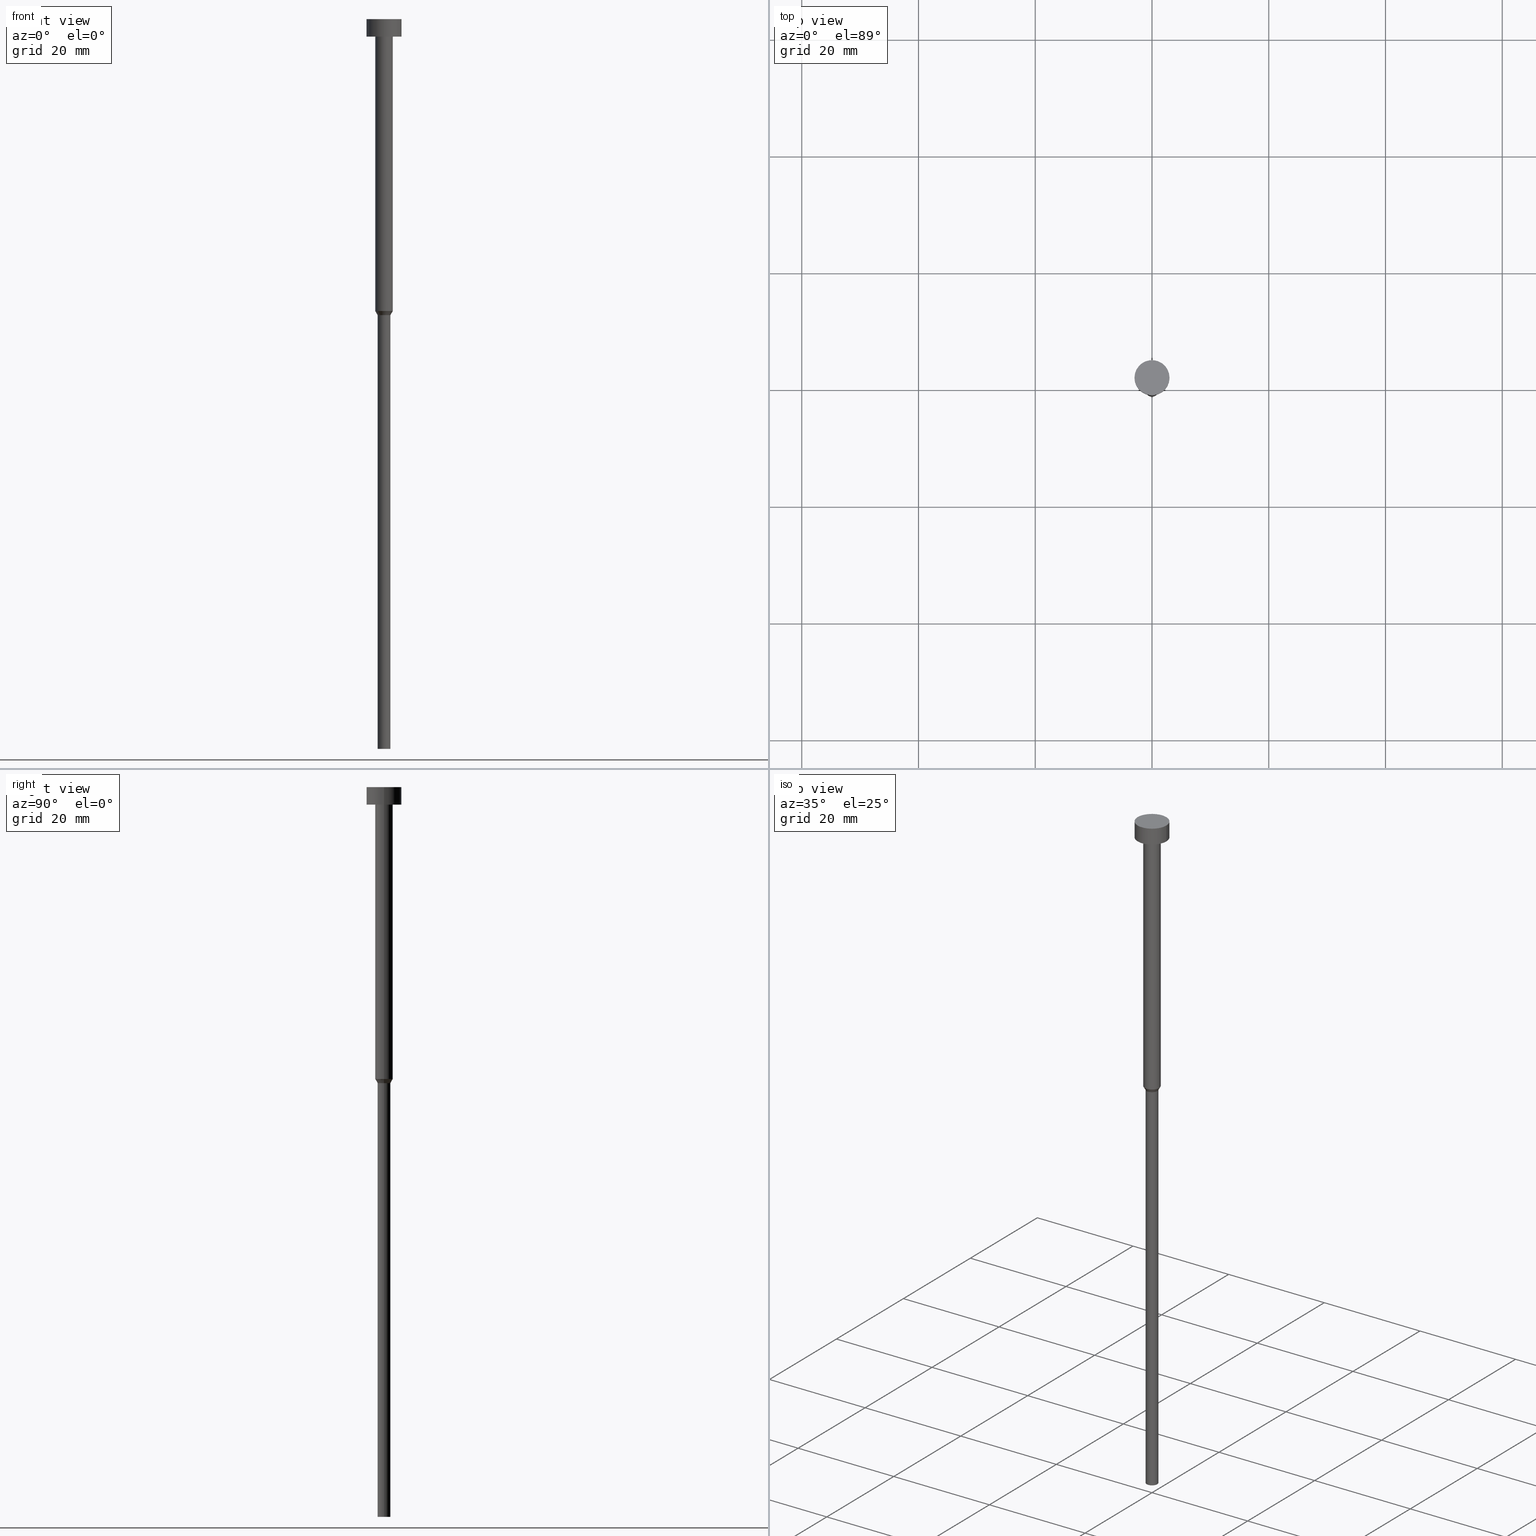
[diagram: canonical four-view strip — front | top / right | iso, engineering-drawing reading convention]
A machine part, canonical four-view strip (front | top / right | iso — engineering-drawing reading convention). The complete STEP part file that produces these views, byte-faithful:
ISO-10303-21;
HEADER;
FILE_DESCRIPTION (( 'STEP AP203' ),
    '1' );
FILE_NAME ('efb0.STEP',
    '2023-02-13T10:03:22',
    ( '' ),
    ( '' ),
    'SwSTEP 2.0',
    'SolidWorks 2019',
    '' );
FILE_SCHEMA (( 'CONFIG_CONTROL_DESIGN' ));
ENDSEC;

DATA;
#1 = CARTESIAN_POINT ( 'NONE',  ( 1.100000000000000089, 0.000000000000000000, -50.69282032302754715 ) ) ;
#2 = CIRCLE ( 'NONE', #160, 1.500000000000000000 ) ;
#3 = EDGE_CURVE ( 'NONE', #70, #236, #242, .T. ) ;
#4 = AXIS2_PLACEMENT_3D ( 'NONE', #271, #349, #139 ) ;
#5 = ORIENTED_EDGE ( 'NONE', *, *, #101, .F. ) ;
#6 = ORIENTED_EDGE ( 'NONE', *, *, #272, .T. ) ;
#7 = LOCAL_TIME ( 11, 3, 22.00000000000000000, #200 ) ;
#8 = LOCAL_TIME ( 11, 3, 22.00000000000000000, #168 ) ;
#9 = LINE ( 'NONE', #37, #30 ) ;
#10 = DIRECTION ( 'NONE',  ( -0.000000000000000000, -0.000000000000000000, 1.000000000000000000 ) ) ;
#11 = DIRECTION ( 'NONE',  ( -0.000000000000000000, -0.000000000000000000, 1.000000000000000000 ) ) ;
#12 = ORGANIZATION ( 'NEUR�EN�', 'NEUR�EN�', '' ) ;
#13 = COORDINATED_UNIVERSAL_TIME_OFFSET ( 1, 0, .AHEAD. ) ;
#14 = APPROVAL ( #237, 'NEUR�EN�' ) ;
#15 = DIRECTION ( 'NONE',  ( 1.000000000000000000, 0.000000000000000000, 0.000000000000000000 ) ) ;
#16 = CARTESIAN_POINT ( 'NONE',  ( 1.500000000000000000, 0.000000000000000000, -3.000000000000000888 ) ) ;
#17 = DIRECTION ( 'NONE',  ( 1.000000000000000000, 0.000000000000000000, 0.000000000000000000 ) ) ;
#18 = CONICAL_SURFACE ( 'NONE', #280, 1.500000000000000000, 0.5235987755983019243 ) ;
#19 = EDGE_CURVE ( 'NONE', #59, #92, #77, .T. ) ;
#20 = ORIENTED_EDGE ( 'NONE', *, *, #188, .F. ) ;
#21 = LOCAL_TIME ( 11, 3, 22.00000000000000000, #57 ) ;
#22 = DIRECTION ( 'NONE',  ( 0.5000000000000026645, 0.000000000000000000, 0.8660254037844371533 ) ) ;
#23 = EDGE_CURVE ( 'NONE', #70, #92, #303, .T. ) ;
#24 = LINE ( 'NONE', #50, #313 ) ;
#25 = AXIS2_PLACEMENT_3D ( 'NONE', #121, #91, #45 ) ;
#26 = CC_DESIGN_DATE_AND_TIME_ASSIGNMENT ( #63, #259, ( #155 ) ) ;
#27 = DIRECTION ( 'NONE',  ( 0.000000000000000000, 0.000000000000000000, 1.000000000000000000 ) ) ;
#28 = APPROVAL_STATUS ( 'not_yet_approved' ) ;
#29 = ORIENTED_EDGE ( 'NONE', *, *, #196, .T. ) ;
#30 = VECTOR ( 'NONE', #300, 1000.000000000000000 ) ;
#31 = APPLICATION_CONTEXT ( 'configuration controlled 3d designs of mechanical parts and assemblies' ) ;
#32 = PRODUCT ( 'efb0', 'efb0', '', ( #310 ) ) ;
#33 = APPROVAL_STATUS ( 'not_yet_approved' ) ;
#34 = DIRECTION ( 'NONE',  ( -0.000000000000000000, -0.000000000000000000, 1.000000000000000000 ) ) ;
#35 = EDGE_LOOP ( 'NONE', ( #202, #29, #324, #5 ) ) ;
#36 = PERSON_AND_ORGANIZATION_ROLE ( 'creator' ) ;
#37 = CARTESIAN_POINT ( 'NONE',  ( -1.100000000000000089, 1.347111479062088503E-16, 0.000000000000000000 ) ) ;
#38 = CALENDAR_DATE ( 2023, 13, 2 ) ;
#39 = PLANE ( 'NONE',  #227 ) ;
#40 = AXIS2_PLACEMENT_3D ( 'NONE', #134, #34, #352 ) ;
#41 = DIRECTION ( 'NONE',  ( -0.000000000000000000, -0.000000000000000000, 1.000000000000000000 ) ) ;
#42 = FACE_OUTER_BOUND ( 'NONE', #204, .T. ) ;
#43 = DIRECTION ( 'NONE',  ( 1.000000000000000000, 0.000000000000000000, 0.000000000000000000 ) ) ;
#44 = PERSON_AND_ORGANIZATION ( #220, #12 ) ;
#45 = DIRECTION ( 'NONE',  ( 1.000000000000000000, 0.000000000000000000, 0.000000000000000000 ) ) ;
#46 = ORIENTED_EDGE ( 'NONE', *, *, #3, .T. ) ;
#47 = CARTESIAN_POINT ( 'NONE',  ( 0.000000000000000000, 0.000000000000000000, -125.0000000000000000 ) ) ;
#48 = ORIENTED_EDGE ( 'NONE', *, *, #319, .F. ) ;
#49 = PERSON_AND_ORGANIZATION ( #220, #12 ) ;
#50 = CARTESIAN_POINT ( 'NONE',  ( 1.500000000000000000, 0.000000000000000000, 0.000000000000000000 ) ) ;
#51 = CIRCLE ( 'NONE', #291, 3.000000000000000000 ) ;
#52 = PLANE ( 'NONE',  #205 ) ;
#53 = CARTESIAN_POINT ( 'NONE',  ( 1.500000000000000000, 0.000000000000000000, -50.00000000000000000 ) ) ;
#54 = CC_DESIGN_PERSON_AND_ORGANIZATION_ASSIGNMENT ( #142, #353, ( #155 ) ) ;
#55 = APPLICATION_CONTEXT ( 'configuration controlled 3d designs of mechanical parts and assemblies' ) ;
#56 = VERTEX_POINT ( 'NONE', #248 ) ;
#57 = COORDINATED_UNIVERSAL_TIME_OFFSET ( 1, 0, .AHEAD. ) ;
#58 = EDGE_LOOP ( 'NONE', ( #175, #107 ) ) ;
#59 = VERTEX_POINT ( 'NONE', #185 ) ;
#60 = APPLICATION_PROTOCOL_DEFINITION ( 'international standard', 'config_control_design', 1994, #55 ) ;
#61 = EDGE_LOOP ( 'NONE', ( #48, #329, #212, #228 ) ) ;
#62 = DIRECTION ( 'NONE',  ( -0.000000000000000000, -0.000000000000000000, 1.000000000000000000 ) ) ;
#63 = DATE_AND_TIME ( #267, #7 ) ;
#64 = DIRECTION ( 'NONE',  ( 1.000000000000000000, 0.000000000000000000, 0.000000000000000000 ) ) ;
#65 = EDGE_CURVE ( 'NONE', #92, #344, #24, .T. ) ;
#66 = ORIENTED_EDGE ( 'NONE', *, *, #23, .F. ) ;
#67 = DIRECTION ( 'NONE',  ( 1.000000000000000000, 0.000000000000000000, 0.000000000000000000 ) ) ;
#68 = CARTESIAN_POINT ( 'NONE',  ( 3.000000000000000000, 0.000000000000000000, -3.673940397442059868E-16 ) ) ;
#69 = CARTESIAN_POINT ( 'NONE',  ( -3.000000000000000000, 3.673940397442059868E-16, 0.000000000000000000 ) ) ;
#70 = VERTEX_POINT ( 'NONE', #1 ) ;
#71 = CYLINDRICAL_SURFACE ( 'NONE', #4, 3.000000000000000000 ) ;
#72 = VERTEX_POINT ( 'NONE', #147 ) ;
#73 = EDGE_CURVE ( 'NONE', #273, #344, #296, .T. ) ;
#74 = CARTESIAN_POINT ( 'NONE',  ( 0.000000000000000000, 0.000000000000000000, 0.000000000000000000 ) ) ;
#75 = PRODUCT_DEFINITION_FORMATION_WITH_SPECIFIED_SOURCE ( 'LIBOVOLN�', '', #32, .NOT_KNOWN. ) ;
#76 =( NAMED_UNIT ( * ) PLANE_ANGLE_UNIT ( ) SI_UNIT ( $, .RADIAN. ) );
#77 = CIRCLE ( 'NONE', #263, 1.500000000000000000 ) ;
#78 = DIRECTION ( 'NONE',  ( -0.5000000000000026645, 6.123233995736798083E-17, 0.8660254037844371533 ) ) ;
#79 = CARTESIAN_POINT ( 'NONE',  ( 1.500000000000000000, 0.000000000000000000, -50.00000000000000000 ) ) ;
#80 = APPLICATION_PROTOCOL_DEFINITION ( 'international standard', 'config_control_design', 1994, #31 ) ;
#81 = EDGE_CURVE ( 'NONE', #236, #59, #97, .T. ) ;
#82 = MANIFOLD_SOLID_BREP ( 'Rotovat1', #145 ) ;
#83 = ADVANCED_FACE ( 'NONE', ( #124, #355 ), #52, .T. ) ;
#84 = VERTEX_POINT ( 'NONE', #217 ) ;
#85 = CIRCLE ( 'NONE', #166, 1.100000000000000089 ) ;
#86 = APPROVAL_PERSON_ORGANIZATION ( #317, #265, #294 ) ;
#87 = ORIENTED_EDGE ( 'NONE', *, *, #65, .F. ) ;
#88 = FACE_OUTER_BOUND ( 'NONE', #181, .T. ) ;
#89 = DIRECTION ( 'NONE',  ( 1.000000000000000000, 0.000000000000000000, 0.000000000000000000 ) ) ;
#90 = CARTESIAN_POINT ( 'NONE',  ( 0.000000000000000000, 0.000000000000000000, -125.0000000000000000 ) ) ;
#91 = DIRECTION ( 'NONE',  ( -0.000000000000000000, -0.000000000000000000, 1.000000000000000000 ) ) ;
#92 = VERTEX_POINT ( 'NONE', #79 ) ;
#93 = CARTESIAN_POINT ( 'NONE',  ( -1.500000000000000000, 1.836970198721029934E-16, -3.000000000000000888 ) ) ;
#94 = CALENDAR_DATE ( 2023, 13, 2 ) ;
#95 = DIRECTION ( 'NONE',  ( -0.000000000000000000, -0.000000000000000000, 1.000000000000000000 ) ) ;
#96 = ADVANCED_FACE ( 'NONE', ( #290 ), #39, .T. ) ;
#97 = LINE ( 'NONE', #276, #337 ) ;
#98 = CARTESIAN_POINT ( 'NONE',  ( 0.000000000000000000, -3.000000000000000000, -3.000000000000000888 ) ) ;
#99 = CC_DESIGN_PERSON_AND_ORGANIZATION_ASSIGNMENT ( #285, #36, ( #194 ) ) ;
#100 =( NAMED_UNIT ( * ) SI_UNIT ( $, .STERADIAN. ) SOLID_ANGLE_UNIT ( ) );
#101 = EDGE_CURVE ( 'NONE', #236, #70, #163, .T. ) ;
#102 = DIRECTION ( 'NONE',  ( -0.000000000000000000, -0.000000000000000000, 1.000000000000000000 ) ) ;
#103 = LOCAL_TIME ( 11, 3, 22.00000000000000000, #13 ) ;
#104 = EDGE_CURVE ( 'NONE', #72, #315, #182, .T. ) ;
#105 = EDGE_LOOP ( 'NONE', ( #288, #158, #170, #162 ) ) ;
#106 = ORIENTED_EDGE ( 'NONE', *, *, #101, .T. ) ;
#107 = ORIENTED_EDGE ( 'NONE', *, *, #104, .T. ) ;
#108 = DIRECTION ( 'NONE',  ( 1.000000000000000000, 0.000000000000000000, 0.000000000000000000 ) ) ;
#109 = CALENDAR_DATE ( 2023, 13, 2 ) ;
#110 = CARTESIAN_POINT ( 'NONE',  ( -1.100000000000000089, 1.347111479062088503E-16, -50.69282032302754715 ) ) ;
#111 = ORIENTED_EDGE ( 'NONE', *, *, #234, .F. ) ;
#112 = DIRECTION ( 'NONE',  ( 1.000000000000000000, 0.000000000000000000, 0.000000000000000000 ) ) ;
#113 = PERSON_AND_ORGANIZATION ( #220, #12 ) ;
#114 = FACE_OUTER_BOUND ( 'NONE', #61, .T. ) ;
#115 = ORIENTED_EDGE ( 'NONE', *, *, #216, .T. ) ;
#116 = APPROVAL_DATE_TIME ( #132, #265 ) ;
#117 = CC_DESIGN_APPROVAL ( #265, ( #155 ) ) ;
#118 = ADVANCED_FACE ( 'NONE', ( #197 ), #18, .T. ) ;
#119 = DIRECTION ( 'NONE',  ( -0.000000000000000000, -0.000000000000000000, 1.000000000000000000 ) ) ;
#120 = ADVANCED_BREP_SHAPE_REPRESENTATION ( 'efb0', ( #82, #231 ), #178 ) ;
#121 = CARTESIAN_POINT ( 'NONE',  ( 0.000000000000000000, 0.000000000000000000, -3.673940397442059868E-16 ) ) ;
#122 = ORIENTED_EDGE ( 'NONE', *, *, #19, .F. ) ;
#123 = CARTESIAN_POINT ( 'NONE',  ( 0.000000000000000000, 0.000000000000000000, 0.000000000000000000 ) ) ;
#124 = FACE_BOUND ( 'NONE', #209, .T. ) ;
#125 = CONICAL_SURFACE ( 'NONE', #128, 1.500000000000000000, 0.5235987755983019243 ) ;
#126 = AXIS2_PLACEMENT_3D ( 'NONE', #297, #95, #244 ) ;
#127 = EDGE_LOOP ( 'NONE', ( #20, #111 ) ) ;
#128 = AXIS2_PLACEMENT_3D ( 'NONE', #293, #119, #64 ) ;
#129 = AXIS2_PLACEMENT_3D ( 'NONE', #351, #289, #345 ) ;
#130 = ORIENTED_EDGE ( 'NONE', *, *, #319, .T. ) ;
#131 = CC_DESIGN_DATE_AND_TIME_ASSIGNMENT ( #241, #137, ( #194 ) ) ;
#132 = DATE_AND_TIME ( #38, #8 ) ;
#133 = AXIS2_PLACEMENT_3D ( 'NONE', #123, #249, #330 ) ;
#134 = CARTESIAN_POINT ( 'NONE',  ( 0.000000000000000000, 0.000000000000000000, -3.673940397442059868E-16 ) ) ;
#135 = ORIENTED_EDGE ( 'NONE', *, *, #73, .T. ) ;
#136 = SHAPE_DEFINITION_REPRESENTATION ( #207, #120 ) ;
#137 = DATE_TIME_ROLE ( 'creation_date' ) ;
#138 = DIRECTION ( 'NONE',  ( 1.000000000000000000, 0.000000000000000000, 0.000000000000000000 ) ) ;
#139 = DIRECTION ( 'NONE',  ( 1.000000000000000000, 0.000000000000000000, 0.000000000000000000 ) ) ;
#140 = CARTESIAN_POINT ( 'NONE',  ( 0.000000000000000000, 0.000000000000000000, -50.00000000000000000 ) ) ;
#141 = DIRECTION ( 'NONE',  ( -0.000000000000000000, -0.000000000000000000, 1.000000000000000000 ) ) ;
#142 = PERSON_AND_ORGANIZATION ( #220, #12 ) ;
#143 = LINE ( 'NONE', #208, #154 ) ;
#144 = ORIENTED_EDGE ( 'NONE', *, *, #23, .T. ) ;
#145 = CLOSED_SHELL ( 'NONE', ( #149, #210, #118, #308, #96, #338, #189, #251, #83, #157, #331 ) ) ;
#146 = ORIENTED_EDGE ( 'NONE', *, *, #81, .T. ) ;
#147 = CARTESIAN_POINT ( 'NONE',  ( -3.000000000000000000, 3.673940397442059868E-16, -3.673940397442059868E-16 ) ) ;
#148 = AXIS2_PLACEMENT_3D ( 'NONE', #307, #336, #312 ) ;
#149 = ADVANCED_FACE ( 'NONE', ( #262 ), #172, .T. ) ;
#150 = DIRECTION ( 'NONE',  ( -1.000000000000000000, 0.000000000000000000, -0.000000000000000000 ) ) ;
#151 = AXIS2_PLACEMENT_3D ( 'NONE', #173, #41, #15 ) ;
#152 = EDGE_CURVE ( 'NONE', #159, #315, #143, .T. ) ;
#153 = DIRECTION ( 'NONE',  ( -0.000000000000000000, -0.000000000000000000, 1.000000000000000000 ) ) ;
#154 = VECTOR ( 'NONE', #321, 1000.000000000000000 ) ;
#155 = SECURITY_CLASSIFICATION ( '', '', #214 ) ;
#156 = PLANE ( 'NONE',  #245 ) ;
#157 = ADVANCED_FACE ( 'NONE', ( #42 ), #71, .T. ) ;
#158 = ORIENTED_EDGE ( 'NONE', *, *, #247, .T. ) ;
#159 = VERTEX_POINT ( 'NONE', #325 ) ;
#160 = AXIS2_PLACEMENT_3D ( 'NONE', #233, #62, #270 ) ;
#161 = APPROVAL ( #28, 'NEUR�EN�' ) ;
#162 = ORIENTED_EDGE ( 'NONE', *, *, #152, .F. ) ;
#163 = CIRCLE ( 'NONE', #126, 1.100000000000000089 ) ;
#164 = PRODUCT_RELATED_PRODUCT_CATEGORY ( 'detail', '', ( #32 ) ) ;
#165 = DIRECTION ( 'NONE',  ( -0.000000000000000000, -0.000000000000000000, 1.000000000000000000 ) ) ;
#166 = AXIS2_PLACEMENT_3D ( 'NONE', #90, #11, #17 ) ;
#167 = APPROVAL_PERSON_ORGANIZATION ( #113, #14, #295 ) ;
#168 = COORDINATED_UNIVERSAL_TIME_OFFSET ( 1, 0, .AHEAD. ) ;
#169 = LINE ( 'NONE', #69, #286 ) ;
#170 = ORIENTED_EDGE ( 'NONE', *, *, #229, .F. ) ;
#171 = LINE ( 'NONE', #223, #187 ) ;
#172 = CYLINDRICAL_SURFACE ( 'NONE', #304, 3.000000000000000000 ) ;
#173 = CARTESIAN_POINT ( 'NONE',  ( 0.000000000000000000, 0.000000000000000000, -50.69282032302754715 ) ) ;
#174 = FACE_OUTER_BOUND ( 'NONE', #246, .T. ) ;
#175 = ORIENTED_EDGE ( 'NONE', *, *, #229, .T. ) ;
#176 = CC_DESIGN_PERSON_AND_ORGANIZATION_ASSIGNMENT ( #49, #305, ( #75 ) ) ;
#177 = CYLINDRICAL_SURFACE ( 'NONE', #230, 1.500000000000000000 ) ;
#178 =( GEOMETRIC_REPRESENTATION_CONTEXT ( 3 ) GLOBAL_UNCERTAINTY_ASSIGNED_CONTEXT ( ( #180 ) ) GLOBAL_UNIT_ASSIGNED_CONTEXT ( ( #179, #76, #100 ) ) REPRESENTATION_CONTEXT ( 'NONE', 'WORKASPACE' ) );
#179 =( LENGTH_UNIT ( ) NAMED_UNIT ( * ) SI_UNIT ( .MILLI., .METRE. ) );
#180 = UNCERTAINTY_MEASURE_WITH_UNIT (LENGTH_MEASURE( 1.000000000000000082E-05 ), #179, 'distance_accuracy_value', 'NONE');
#181 = EDGE_LOOP ( 'NONE', ( #226, #115, #255, #301 ) ) ;
#182 = CIRCLE ( 'NONE', #40, 3.000000000000000000 ) ;
#183 = APPROVAL_DATE_TIME ( #264, #14 ) ;
#184 = DIRECTION ( 'NONE',  ( -0.000000000000000000, -0.000000000000000000, 1.000000000000000000 ) ) ;
#185 = CARTESIAN_POINT ( 'NONE',  ( -1.500000000000000000, 1.836970198721029934E-16, -50.00000000000000000 ) ) ;
#186 = CARTESIAN_POINT ( 'NONE',  ( 0.000000000000000000, 0.000000000000000000, 0.000000000000000000 ) ) ;
#187 = VECTOR ( 'NONE', #102, 1000.000000000000000 ) ;
#188 = EDGE_CURVE ( 'NONE', #159, #56, #51, .T. ) ;
#189 = ADVANCED_FACE ( 'NONE', ( #174 ), #125, .T. ) ;
#190 = CYLINDRICAL_SURFACE ( 'NONE', #148, 1.100000000000000089 ) ;
#191 = PERSON_AND_ORGANIZATION ( #220, #12 ) ;
#192 = VECTOR ( 'NONE', #22, 1000.000000000000000 ) ;
#193 = ORIENTED_EDGE ( 'NONE', *, *, #254, .F. ) ;
#194 = PRODUCT_DEFINITION ( 'NEZN�M�', '', #75, #213 ) ;
#195 = ORIENTED_EDGE ( 'NONE', *, *, #104, .F. ) ;
#196 = EDGE_CURVE ( 'NONE', #261, #84, #85, .T. ) ;
#197 = FACE_OUTER_BOUND ( 'NONE', #347, .T. ) ;
#198 = CYLINDRICAL_SURFACE ( 'NONE', #287, 1.100000000000000089 ) ;
#199 = DIRECTION ( 'NONE',  ( 1.000000000000000000, 0.000000000000000000, 0.000000000000000000 ) ) ;
#200 = COORDINATED_UNIVERSAL_TIME_OFFSET ( 1, 0, .AHEAD. ) ;
#201 = CARTESIAN_POINT ( 'NONE',  ( 0.000000000000000000, 0.000000000000000000, 0.000000000000000000 ) ) ;
#202 = ORIENTED_EDGE ( 'NONE', *, *, #216, .F. ) ;
#203 = DIRECTION ( 'NONE',  ( 0.000000000000000000, 0.000000000000000000, -1.000000000000000000 ) ) ;
#204 = EDGE_LOOP ( 'NONE', ( #332, #298, #350, #195 ) ) ;
#205 = AXIS2_PLACEMENT_3D ( 'NONE', #98, #215, #150 ) ;
#206 = LINE ( 'NONE', #342, #341 ) ;
#207 = PRODUCT_DEFINITION_SHAPE ( 'NONE', 'NONE',  #194 ) ;
#208 = CARTESIAN_POINT ( 'NONE',  ( 3.000000000000000000, 0.000000000000000000, 0.000000000000000000 ) ) ;
#209 = EDGE_LOOP ( 'NONE', ( #6, #135 ) ) ;
#210 = ADVANCED_FACE ( 'NONE', ( #328 ), #177, .T. ) ;
#211 = CC_DESIGN_APPROVAL ( #161, ( #194 ) ) ;
#212 = ORIENTED_EDGE ( 'NONE', *, *, #65, .T. ) ;
#213 = DESIGN_CONTEXT ( 'detailed design', #55, 'design' ) ;
#214 = SECURITY_CLASSIFICATION_LEVEL ( 'unclassified' ) ;
#215 = DIRECTION ( 'NONE',  ( 0.000000000000000000, 0.000000000000000000, -1.000000000000000000 ) ) ;
#216 = EDGE_CURVE ( 'NONE', #261, #236, #9, .T. ) ;
#217 = CARTESIAN_POINT ( 'NONE',  ( 1.100000000000000089, 0.000000000000000000, -125.0000000000000000 ) ) ;
#218 = APPROVAL_PERSON_ORGANIZATION ( #282, #161, #252 ) ;
#219 = DIRECTION ( 'NONE',  ( 1.000000000000000000, 0.000000000000000000, 0.000000000000000000 ) ) ;
#220 = PERSON ( 'NEUR�EN�', 'NEUR�EN�', 'NEUR�EN�', ('NEUR�EN�'), ('NEUR�EN�'), ('NEUR�EN�') ) ;
#221 = DIRECTION ( 'NONE',  ( 0.000000000000000000, -0.000000000000000000, 1.000000000000000000 ) ) ;
#222 = DIRECTION ( 'NONE',  ( 1.000000000000000000, 0.000000000000000000, 0.000000000000000000 ) ) ;
#223 = CARTESIAN_POINT ( 'NONE',  ( -1.500000000000000000, 1.836970198721029934E-16, 0.000000000000000000 ) ) ;
#224 = DATE_AND_TIME ( #340, #21 ) ;
#225 = CIRCLE ( 'NONE', #334, 1.100000000000000089 ) ;
#226 = ORIENTED_EDGE ( 'NONE', *, *, #254, .T. ) ;
#227 = AXIS2_PLACEMENT_3D ( 'NONE', #354, #203, #274 ) ;
#228 = ORIENTED_EDGE ( 'NONE', *, *, #73, .F. ) ;
#229 = EDGE_CURVE ( 'NONE', #315, #72, #239, .T. ) ;
#230 = AXIS2_PLACEMENT_3D ( 'NONE', #201, #141, #89 ) ;
#231 = AXIS2_PLACEMENT_3D ( 'NONE', #186, #27, #222 ) ;
#232 = ORIENTED_EDGE ( 'NONE', *, *, #258, .T. ) ;
#233 = CARTESIAN_POINT ( 'NONE',  ( 0.000000000000000000, 0.000000000000000000, -50.00000000000000000 ) ) ;
#234 = EDGE_CURVE ( 'NONE', #56, #159, #256, .T. ) ;
#235 = CARTESIAN_POINT ( 'NONE',  ( 0.000000000000000000, 0.000000000000000000, -50.00000000000000000 ) ) ;
#236 = VERTEX_POINT ( 'NONE', #110 ) ;
#237 = APPROVAL_STATUS ( 'not_yet_approved' ) ;
#238 = CYLINDRICAL_SURFACE ( 'NONE', #133, 1.500000000000000000 ) ;
#239 = CIRCLE ( 'NONE', #25, 3.000000000000000000 ) ;
#240 = DIRECTION ( 'NONE',  ( -0.000000000000000000, -0.000000000000000000, 1.000000000000000000 ) ) ;
#241 = DATE_AND_TIME ( #109, #257 ) ;
#242 = CIRCLE ( 'NONE', #151, 1.100000000000000089 ) ;
#243 = PERSON_AND_ORGANIZATION_ROLE ( 'creator' ) ;
#244 = DIRECTION ( 'NONE',  ( 1.000000000000000000, 0.000000000000000000, 0.000000000000000000 ) ) ;
#245 = AXIS2_PLACEMENT_3D ( 'NONE', #283, #221, #219 ) ;
#246 = EDGE_LOOP ( 'NONE', ( #275, #106, #144, #122 ) ) ;
#247 = EDGE_CURVE ( 'NONE', #56, #72, #169, .T. ) ;
#248 = CARTESIAN_POINT ( 'NONE',  ( -3.000000000000000000, 3.673940397442059868E-16, -3.000000000000000888 ) ) ;
#249 = DIRECTION ( 'NONE',  ( -0.000000000000000000, -0.000000000000000000, 1.000000000000000000 ) ) ;
#250 = CC_DESIGN_PERSON_AND_ORGANIZATION_ASSIGNMENT ( #44, #243, ( #75 ) ) ;
#251 = ADVANCED_FACE ( 'NONE', ( #114 ), #238, .T. ) ;
#252 = APPROVAL_ROLE ( '' ) ;
#253 = ORIENTED_EDGE ( 'NONE', *, *, #258, .F. ) ;
#254 = EDGE_CURVE ( 'NONE', #84, #261, #225, .T. ) ;
#255 = ORIENTED_EDGE ( 'NONE', *, *, #3, .F. ) ;
#256 = CIRCLE ( 'NONE', #309, 3.000000000000000000 ) ;
#257 = LOCAL_TIME ( 11, 3, 22.00000000000000000, #323 ) ;
#258 = EDGE_CURVE ( 'NONE', #92, #59, #2, .T. ) ;
#259 = DATE_TIME_ROLE ( 'classification_date' ) ;
#260 = DIRECTION ( 'NONE',  ( 1.000000000000000000, 0.000000000000000000, 0.000000000000000000 ) ) ;
#261 = VERTEX_POINT ( 'NONE', #327 ) ;
#262 = FACE_OUTER_BOUND ( 'NONE', #105, .T. ) ;
#263 = AXIS2_PLACEMENT_3D ( 'NONE', #140, #269, #43 ) ;
#264 = DATE_AND_TIME ( #94, #103 ) ;
#265 = APPROVAL ( #33, 'NEUR�EN�' ) ;
#266 = CC_DESIGN_PERSON_AND_ORGANIZATION_ASSIGNMENT ( #191, #314, ( #32 ) ) ;
#267 = CALENDAR_DATE ( 2023, 13, 2 ) ;
#268 = CARTESIAN_POINT ( 'NONE',  ( 0.000000000000000000, 0.000000000000000000, -3.000000000000000888 ) ) ;
#269 = DIRECTION ( 'NONE',  ( -0.000000000000000000, -0.000000000000000000, 1.000000000000000000 ) ) ;
#270 = DIRECTION ( 'NONE',  ( 1.000000000000000000, 0.000000000000000000, 0.000000000000000000 ) ) ;
#271 = CARTESIAN_POINT ( 'NONE',  ( 0.000000000000000000, 0.000000000000000000, 0.000000000000000000 ) ) ;
#272 = EDGE_CURVE ( 'NONE', #344, #273, #348, .T. ) ;
#273 = VERTEX_POINT ( 'NONE', #93 ) ;
#274 = DIRECTION ( 'NONE',  ( -1.000000000000000000, 0.000000000000000000, -0.000000000000000000 ) ) ;
#275 = ORIENTED_EDGE ( 'NONE', *, *, #81, .F. ) ;
#276 = CARTESIAN_POINT ( 'NONE',  ( -1.500000000000000000, 1.836970198721029934E-16, -50.00000000000000000 ) ) ;
#277 = CARTESIAN_POINT ( 'NONE',  ( 0.000000000000000000, 0.000000000000000000, -3.000000000000000888 ) ) ;
#278 = FACE_OUTER_BOUND ( 'NONE', #35, .T. ) ;
#279 = AXIS2_PLACEMENT_3D ( 'NONE', #277, #333, #306 ) ;
#280 = AXIS2_PLACEMENT_3D ( 'NONE', #235, #240, #138 ) ;
#281 = EDGE_CURVE ( 'NONE', #84, #70, #206, .T. ) ;
#282 = PERSON_AND_ORGANIZATION ( #220, #12 ) ;
#283 = CARTESIAN_POINT ( 'NONE',  ( 0.000000000000000000, 0.000000000000000000, -1.836970198721029934E-16 ) ) ;
#284 = ORIENTED_EDGE ( 'NONE', *, *, #196, .F. ) ;
#285 = PERSON_AND_ORGANIZATION ( #220, #12 ) ;
#286 = VECTOR ( 'NONE', #10, 1000.000000000000000 ) ;
#287 = AXIS2_PLACEMENT_3D ( 'NONE', #320, #292, #112 ) ;
#288 = ORIENTED_EDGE ( 'NONE', *, *, #188, .T. ) ;
#289 = DIRECTION ( 'NONE',  ( -0.000000000000000000, -0.000000000000000000, 1.000000000000000000 ) ) ;
#290 = FACE_OUTER_BOUND ( 'NONE', #326, .T. ) ;
#291 = AXIS2_PLACEMENT_3D ( 'NONE', #268, #343, #260 ) ;
#292 = DIRECTION ( 'NONE',  ( -0.000000000000000000, -0.000000000000000000, 1.000000000000000000 ) ) ;
#293 = CARTESIAN_POINT ( 'NONE',  ( 0.000000000000000000, 0.000000000000000000, -50.00000000000000000 ) ) ;
#294 = APPROVAL_ROLE ( '' ) ;
#295 = APPROVAL_ROLE ( '' ) ;
#296 = CIRCLE ( 'NONE', #279, 1.500000000000000000 ) ;
#297 = CARTESIAN_POINT ( 'NONE',  ( 0.000000000000000000, 0.000000000000000000, -50.69282032302754715 ) ) ;
#298 = ORIENTED_EDGE ( 'NONE', *, *, #234, .T. ) ;
#299 = CC_DESIGN_SECURITY_CLASSIFICATION ( #155, ( #75 ) ) ;
#300 = DIRECTION ( 'NONE',  ( -0.000000000000000000, -0.000000000000000000, 1.000000000000000000 ) ) ;
#301 = ORIENTED_EDGE ( 'NONE', *, *, #281, .F. ) ;
#302 = EDGE_LOOP ( 'NONE', ( #232, #130, #316, #87 ) ) ;
#303 = LINE ( 'NONE', #53, #192 ) ;
#304 = AXIS2_PLACEMENT_3D ( 'NONE', #74, #346, #199 ) ;
#305 = PERSON_AND_ORGANIZATION_ROLE ( 'design_supplier' ) ;
#306 = DIRECTION ( 'NONE',  ( 1.000000000000000000, 0.000000000000000000, 0.000000000000000000 ) ) ;
#307 = CARTESIAN_POINT ( 'NONE',  ( 0.000000000000000000, 0.000000000000000000, 0.000000000000000000 ) ) ;
#308 = ADVANCED_FACE ( 'NONE', ( #88 ), #198, .T. ) ;
#309 = AXIS2_PLACEMENT_3D ( 'NONE', #318, #165, #67 ) ;
#310 = MECHANICAL_CONTEXT ( 'NONE', #31, 'mechanical' ) ;
#311 = APPROVAL_DATE_TIME ( #224, #161 ) ;
#312 = DIRECTION ( 'NONE',  ( 1.000000000000000000, 0.000000000000000000, 0.000000000000000000 ) ) ;
#313 = VECTOR ( 'NONE', #153, 1000.000000000000000 ) ;
#314 = PERSON_AND_ORGANIZATION_ROLE ( 'design_owner' ) ;
#315 = VERTEX_POINT ( 'NONE', #68 ) ;
#316 = ORIENTED_EDGE ( 'NONE', *, *, #272, .F. ) ;
#317 = PERSON_AND_ORGANIZATION ( #220, #12 ) ;
#318 = CARTESIAN_POINT ( 'NONE',  ( 0.000000000000000000, 0.000000000000000000, -3.000000000000000888 ) ) ;
#319 = EDGE_CURVE ( 'NONE', #59, #273, #171, .T. ) ;
#320 = CARTESIAN_POINT ( 'NONE',  ( 0.000000000000000000, 0.000000000000000000, 0.000000000000000000 ) ) ;
#321 = DIRECTION ( 'NONE',  ( -0.000000000000000000, -0.000000000000000000, 1.000000000000000000 ) ) ;
#322 = DIRECTION ( 'NONE',  ( -0.000000000000000000, -0.000000000000000000, 1.000000000000000000 ) ) ;
#323 = COORDINATED_UNIVERSAL_TIME_OFFSET ( 1, 0, .AHEAD. ) ;
#324 = ORIENTED_EDGE ( 'NONE', *, *, #281, .T. ) ;
#325 = CARTESIAN_POINT ( 'NONE',  ( 3.000000000000000000, 0.000000000000000000, -3.000000000000000888 ) ) ;
#326 = EDGE_LOOP ( 'NONE', ( #193, #284 ) ) ;
#327 = CARTESIAN_POINT ( 'NONE',  ( -1.100000000000000089, 1.347111479062088503E-16, -125.0000000000000000 ) ) ;
#328 = FACE_OUTER_BOUND ( 'NONE', #302, .T. ) ;
#329 = ORIENTED_EDGE ( 'NONE', *, *, #19, .T. ) ;
#330 = DIRECTION ( 'NONE',  ( 1.000000000000000000, 0.000000000000000000, 0.000000000000000000 ) ) ;
#331 = ADVANCED_FACE ( 'NONE', ( #339 ), #156, .T. ) ;
#332 = ORIENTED_EDGE ( 'NONE', *, *, #247, .F. ) ;
#333 = DIRECTION ( 'NONE',  ( -0.000000000000000000, -0.000000000000000000, 1.000000000000000000 ) ) ;
#334 = AXIS2_PLACEMENT_3D ( 'NONE', #47, #184, #108 ) ;
#335 = CC_DESIGN_APPROVAL ( #14, ( #75 ) ) ;
#336 = DIRECTION ( 'NONE',  ( -0.000000000000000000, -0.000000000000000000, 1.000000000000000000 ) ) ;
#337 = VECTOR ( 'NONE', #78, 1000.000000000000000 ) ;
#338 = ADVANCED_FACE ( 'NONE', ( #278 ), #190, .T. ) ;
#339 = FACE_OUTER_BOUND ( 'NONE', #58, .T. ) ;
#340 = CALENDAR_DATE ( 2023, 13, 2 ) ;
#341 = VECTOR ( 'NONE', #322, 1000.000000000000000 ) ;
#342 = CARTESIAN_POINT ( 'NONE',  ( 1.100000000000000089, 0.000000000000000000, 0.000000000000000000 ) ) ;
#343 = DIRECTION ( 'NONE',  ( -0.000000000000000000, -0.000000000000000000, 1.000000000000000000 ) ) ;
#344 = VERTEX_POINT ( 'NONE', #16 ) ;
#345 = DIRECTION ( 'NONE',  ( 1.000000000000000000, 0.000000000000000000, 0.000000000000000000 ) ) ;
#346 = DIRECTION ( 'NONE',  ( -0.000000000000000000, -0.000000000000000000, 1.000000000000000000 ) ) ;
#347 = EDGE_LOOP ( 'NONE', ( #46, #146, #253, #66 ) ) ;
#348 = CIRCLE ( 'NONE', #129, 1.500000000000000000 ) ;
#349 = DIRECTION ( 'NONE',  ( -0.000000000000000000, -0.000000000000000000, 1.000000000000000000 ) ) ;
#350 = ORIENTED_EDGE ( 'NONE', *, *, #152, .T. ) ;
#351 = CARTESIAN_POINT ( 'NONE',  ( 0.000000000000000000, 0.000000000000000000, -3.000000000000000888 ) ) ;
#352 = DIRECTION ( 'NONE',  ( 1.000000000000000000, 0.000000000000000000, 0.000000000000000000 ) ) ;
#353 = PERSON_AND_ORGANIZATION_ROLE ( 'classification_officer' ) ;
#354 = CARTESIAN_POINT ( 'NONE',  ( 0.000000000000000000, 0.000000000000000000, -125.0000000000000000 ) ) ;
#355 = FACE_OUTER_BOUND ( 'NONE', #127, .T. ) ;
ENDSEC;
END-ISO-10303-21;
